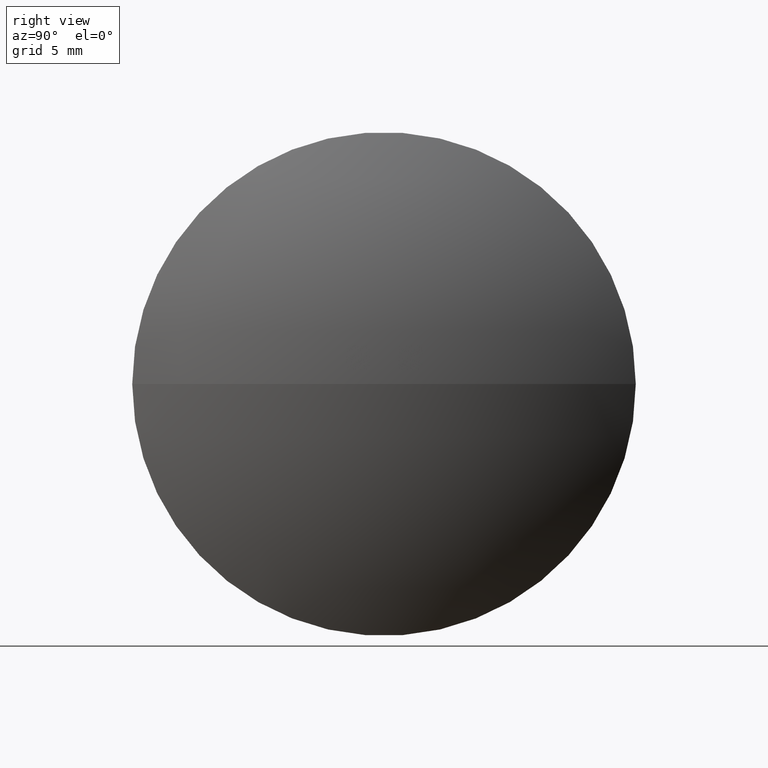
[diagram: clean part render]
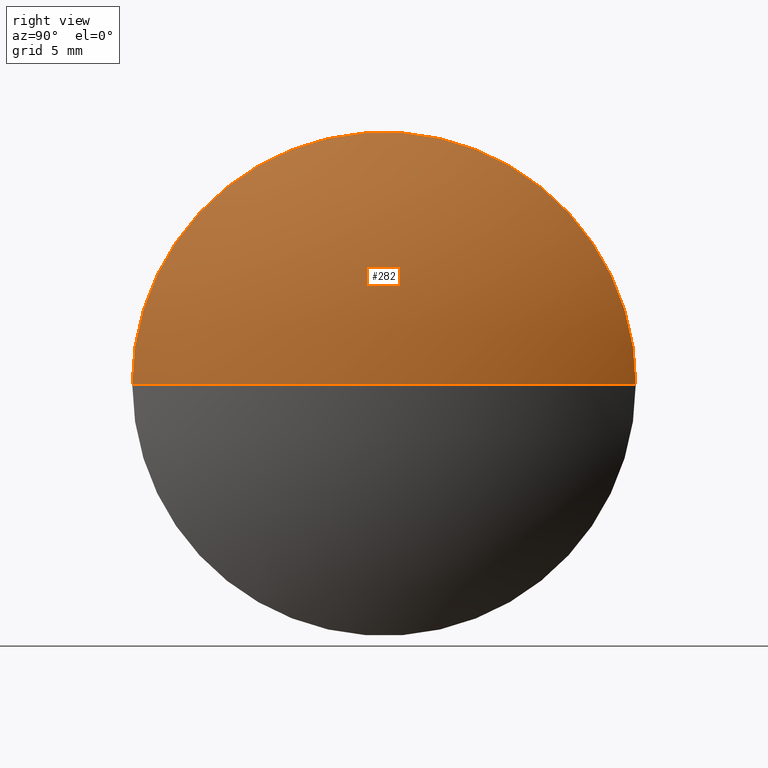
[diagram: same view with one face highlighted and labeled with its STEP entity id]
A machine part, right view. The second image highlights one B-rep face of the part: STEP entity #282.
In plain terms, the highlighted spherical surface has radius 38.841 mm.
Its self-contained STEP definition (entity closure, byte-faithful):
#2 = AXIS2_PLACEMENT_3D ( 'NONE', #222, #244, #138 ) ;
#6 = FACE_OUTER_BOUND ( 'NONE', #146, .T. ) ;
#16 = DIRECTION ( 'NONE',  ( -1.000000000000000000, -1.732231757631238700E-015, -0.0000000000000000000 ) ) ;
#26 = AXIS2_PLACEMENT_3D ( 'NONE', #164, #147, #50 ) ;
#33 = CIRCLE ( 'NONE', #2, 38.84103020739405600 ) ;
#45 = EDGE_CURVE ( 'NONE', #241, #53, #33, .T. ) ;
#50 = DIRECTION ( 'NONE',  ( -1.786485545531768000E-015, 1.000000000000000000, 0.0000000000000000000 ) ) ;
#53 = VERTEX_POINT ( 'NONE', #295 ) ;
#62 = ORIENTED_EDGE ( 'NONE', *, *, #153, .F. ) ;
#69 = CARTESIAN_POINT ( 'NONE',  ( 104.1086056582155900, 76.56080791052680500, 0.0000000000000000000 ) ) ;
#72 = CIRCLE ( 'NONE', #209, 19.99999999999994700 ) ;
#75 = CARTESIAN_POINT ( 'NONE',  ( 142.9496358656096500, 76.56080791052687600, 0.0000000000000000000 ) ) ;
#115 = DIRECTION ( 'NONE',  ( 1.387778780781449400E-015, -1.000000000000000000, 0.0000000000000000000 ) ) ;
#137 = ORIENTED_EDGE ( 'NONE', *, *, #45, .T. ) ;
#138 = DIRECTION ( 'NONE',  ( 1.000000000000000000, 0.0000000000000000000, 0.0000000000000000000 ) ) ;
#139 = CARTESIAN_POINT ( 'NONE',  ( 137.4046358656097500, 76.56080791052686200, 0.0000000000000000000 ) ) ;
#146 = EDGE_LOOP ( 'NONE', ( #62, #137, #220 ) ) ;
#147 = DIRECTION ( 'NONE',  ( -0.0000000000000000000, 0.0000000000000000000, -1.000000000000000000 ) ) ;
#153 = EDGE_CURVE ( 'NONE', #241, #176, #280, .T. ) ;
#160 = SPHERICAL_SURFACE ( 'NONE', #26, 38.84103020739407000 ) ;
#164 = CARTESIAN_POINT ( 'NONE',  ( 104.1086056582155900, 76.56080791052680500, 0.0000000000000000000 ) ) ;
#168 = EDGE_CURVE ( 'NONE', #176, #53, #72, .T. ) ;
#176 = VERTEX_POINT ( 'NONE', #245 ) ;
#180 = DIRECTION ( 'NONE',  ( 0.0000000000000000000, 1.000000000000000000, 1.224646799147353500E-016 ) ) ;
#185 = AXIS2_PLACEMENT_3D ( 'NONE', #69, #246, #180 ) ;
#209 = AXIS2_PLACEMENT_3D ( 'NONE', #139, #16, #115 ) ;
#220 = ORIENTED_EDGE ( 'NONE', *, *, #168, .F. ) ;
#222 = CARTESIAN_POINT ( 'NONE',  ( 104.1086056582155900, 76.56080791052680500, 0.0000000000000000000 ) ) ;
#241 = VERTEX_POINT ( 'NONE', #75 ) ;
#244 = DIRECTION ( 'NONE',  ( -0.0000000000000000000, 0.0000000000000000000, 1.000000000000000000 ) ) ;
#245 = CARTESIAN_POINT ( 'NONE',  ( 137.4046358656097800, 56.56080791052694000, -2.449293598294696300E-015 ) ) ;
#246 = DIRECTION ( 'NONE',  ( -2.121372077364490100E-031, 1.224646799147353200E-016, -1.000000000000000000 ) ) ;
#280 = CIRCLE ( 'NONE', #185, 38.84103020739407000 ) ;
#282 = ADVANCED_FACE ( 'NONE', ( #6 ), #160, .T. ) ;
#295 = CARTESIAN_POINT ( 'NONE',  ( 137.4046358656097200, 96.56080791052676200, 0.0000000000000000000 ) ) ;